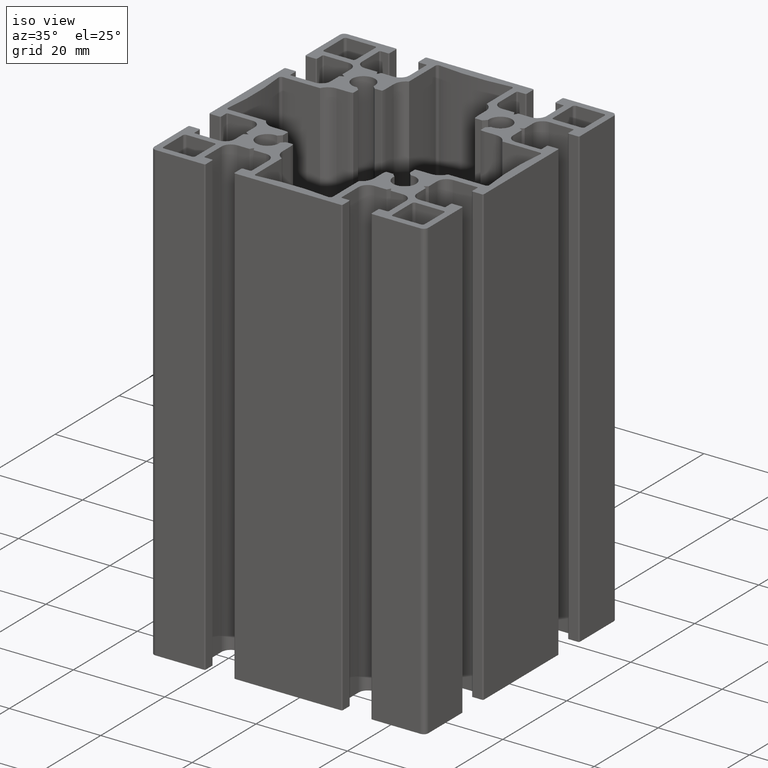
[diagram: clean part render]
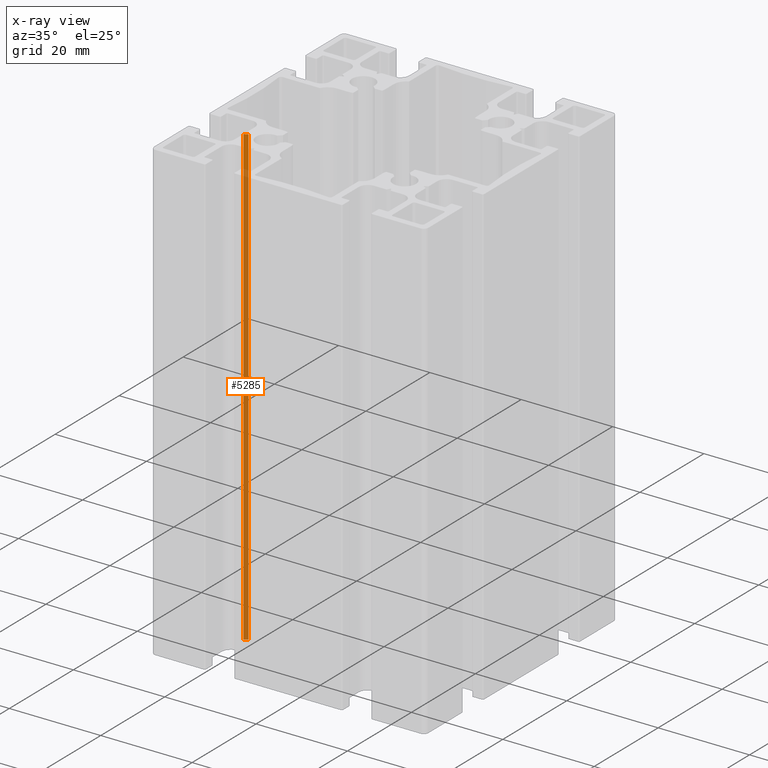
[diagram: x-ray — body ghosted, one internal face saturated and labeled with its STEP entity id]
A machine part, iso view, then the same camera in x-ray: the body is ghosted and one INTERNAL B-rep face — a face not visible from any outside direction — is saturated and labeled: STEP entity #5285.
In plain terms, the highlighted planar face has unit normal (-0.5, 0.866, 0).
Its self-contained STEP definition (entity closure, byte-faithful):
#609=FACE_OUTER_BOUND('',#885,.T.);
#885=EDGE_LOOP('',(#4715,#4716,#4717,#4718));
#1001=LINE('',#7641,#1545);
#1167=LINE('',#8263,#1711);
#1429=LINE('',#8929,#1973);
#1430=LINE('',#8931,#1974);
#1545=VECTOR('',#6022,10.);
#1711=VECTOR('',#6490,10.);
#1973=VECTOR('',#7288,10.);
#1974=VECTOR('',#7291,10.);
#2112=VERTEX_POINT('',#7638);
#2113=VERTEX_POINT('',#7640);
#2417=VERTEX_POINT('',#8260);
#2418=VERTEX_POINT('',#8262);
#2646=EDGE_CURVE('',#2112,#2113,#1001,.T.);
#2959=EDGE_CURVE('',#2418,#2417,#1167,.T.);
#3293=EDGE_CURVE('',#2417,#2113,#1429,.T.);
#3294=EDGE_CURVE('',#2418,#2112,#1430,.T.);
#4715=ORIENTED_EDGE('',*,*,#2959,.T.);
#4716=ORIENTED_EDGE('',*,*,#3293,.T.);
#4717=ORIENTED_EDGE('',*,*,#2646,.F.);
#4718=ORIENTED_EDGE('',*,*,#3294,.F.);
#5042=PLANE('',#5822);
#5285=ADVANCED_FACE('',(#609),#5042,.T.);
#5822=AXIS2_PLACEMENT_3D('',#8930,#7289,#7290);
#6022=DIRECTION('',(-0.866025403784684,-0.499999999999574,0.));
#6490=DIRECTION('',(-0.866025403784684,-0.499999999999574,0.));
#7288=DIRECTION('',(0.,0.,1.));
#7289=DIRECTION('center_axis',(-0.499999999999574,0.866025403784684,0.));
#7290=DIRECTION('ref_axis',(-0.866025403784684,-0.499999999999574,0.));
#7291=DIRECTION('',(0.,0.,1.));
#7638=CARTESIAN_POINT('',(-19.1638789949991,-14.9999995275003,100.));
#7640=CARTESIAN_POINT('',(-19.9665545549994,-15.4634244781379,100.));
#7641=CARTESIAN_POINT('',(-19.1638789949991,-14.9999995275003,100.));
#8260=CARTESIAN_POINT('',(-19.9665545549994,-15.4634244781379,0.));
#8262=CARTESIAN_POINT('',(-19.1638789949991,-14.9999995275003,0.));
#8263=CARTESIAN_POINT('',(-19.1638789949991,-14.9999995275003,0.));
#8929=CARTESIAN_POINT('',(-19.9665545549994,-15.4634244781379,0.));
#8930=CARTESIAN_POINT('Origin',(-19.1638789949991,-14.9999995275003,0.));
#8931=CARTESIAN_POINT('',(-19.1638789949991,-14.9999995275003,0.));